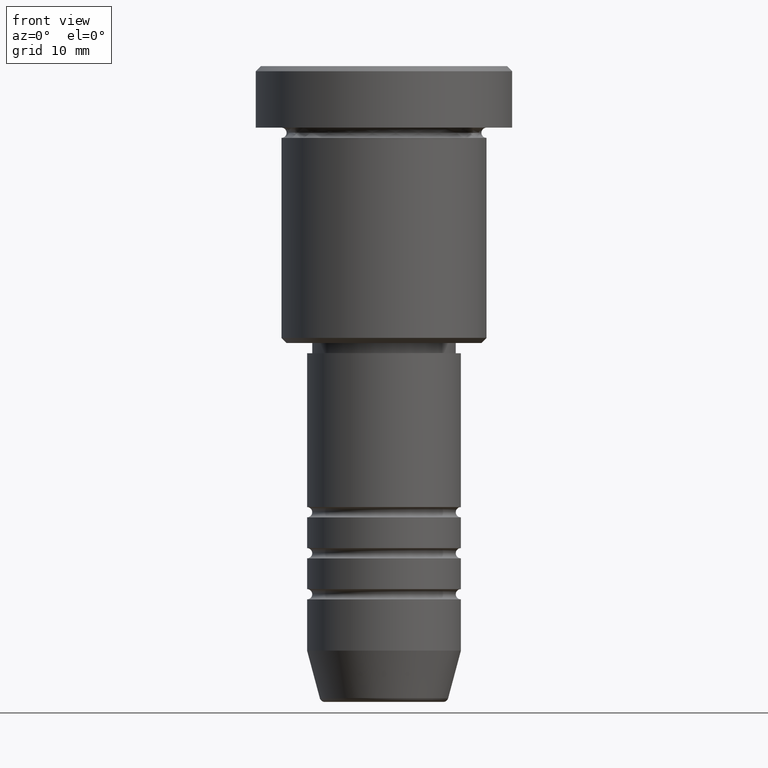
[diagram: clean part render]
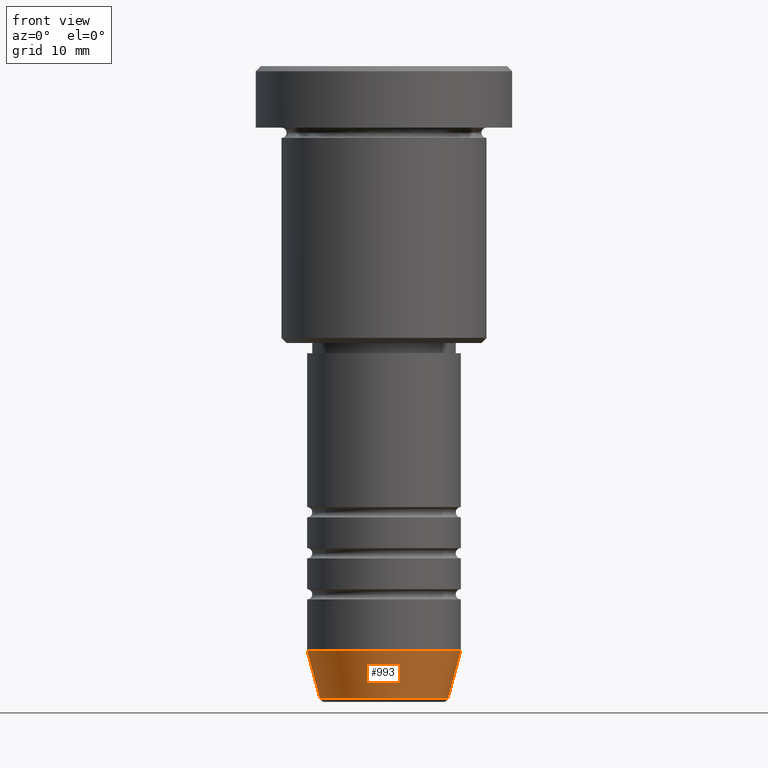
[diagram: same view with one face highlighted and labeled with its STEP entity id]
A machine part, front view. The second image highlights one B-rep face of the part: STEP entity #993.
In plain terms, the highlighted conical surface has half-angle 15 deg.
Its self-contained STEP definition (entity closure, byte-faithful):
#14 = CARTESIAN_POINT ( 'NONE',  ( 0.000000000000000000, 0.000000000000000000, -61.62940952255126348 ) ) ;
#62 = ORIENTED_EDGE ( 'NONE', *, *, #1100, .T. ) ;
#83 = CONICAL_SURFACE ( 'NONE', #202, 7.500000000000000000, 0.2617993877991500740 ) ;
#100 = CARTESIAN_POINT ( 'NONE',  ( -7.500000000000000000, 9.184850993605147944E-16, -57.00000000000000000 ) ) ;
#118 = ORIENTED_EDGE ( 'NONE', *, *, #192, .F. ) ;
#144 = CIRCLE ( 'NONE', #740, 7.500000000000000000 ) ;
#166 = ORIENTED_EDGE ( 'NONE', *, *, #934, .F. ) ;
#167 = DIRECTION ( 'NONE',  ( -0.2588190451025213501, 3.169619151431772337E-17, 0.9659258262890680902 ) ) ;
#176 = DIRECTION ( 'NONE',  ( -0.000000000000000000, -0.000000000000000000, 1.000000000000000000 ) ) ;
#192 = EDGE_CURVE ( 'NONE', #980, #1127, #144, .T. ) ;
#197 = DIRECTION ( 'NONE',  ( 1.000000000000000000, 0.000000000000000000, 0.000000000000000000 ) ) ;
#202 = AXIS2_PLACEMENT_3D ( 'NONE', #294, #176, #197 ) ;
#289 = FACE_OUTER_BOUND ( 'NONE', #990, .T. ) ;
#294 = CARTESIAN_POINT ( 'NONE',  ( 0.000000000000000000, 0.000000000000000000, -57.00000000000000000 ) ) ;
#311 = DIRECTION ( 'NONE',  ( -0.000000000000000000, -0.000000000000000000, 1.000000000000000000 ) ) ;
#395 = CARTESIAN_POINT ( 'NONE',  ( 0.000000000000000000, 0.000000000000000000, -57.00000000000000000 ) ) ;
#442 = VECTOR ( 'NONE', #1042, 1000.000000000000000 ) ;
#487 = CIRCLE ( 'NONE', #1147, 6.259553456999436882 ) ;
#500 = LINE ( 'NONE', #1139, #442 ) ;
#516 = EDGE_CURVE ( 'NONE', #712, #1127, #500, .T. ) ;
#528 = CARTESIAN_POINT ( 'NONE',  ( -7.500000000000000000, 9.184850993605147944E-16, -57.00000000000000000 ) ) ;
#630 = ORIENTED_EDGE ( 'NONE', *, *, #516, .T. ) ;
#647 = VERTEX_POINT ( 'NONE', #964 ) ;
#677 = CARTESIAN_POINT ( 'NONE',  ( 6.259553456999436882, 0.000000000000000000, -61.62940952255126348 ) ) ;
#683 = CARTESIAN_POINT ( 'NONE',  ( 7.500000000000000000, 0.000000000000000000, -57.00000000000000000 ) ) ;
#712 = VERTEX_POINT ( 'NONE', #677 ) ;
#740 = AXIS2_PLACEMENT_3D ( 'NONE', #395, #311, #752 ) ;
#752 = DIRECTION ( 'NONE',  ( 1.000000000000000000, 0.000000000000000000, 0.000000000000000000 ) ) ;
#934 = EDGE_CURVE ( 'NONE', #647, #980, #962, .T. ) ;
#962 = LINE ( 'NONE', #528, #985 ) ;
#964 = CARTESIAN_POINT ( 'NONE',  ( -6.259553456999436882, 8.425296549405627514E-16, -61.62940952255126348 ) ) ;
#980 = VERTEX_POINT ( 'NONE', #100 ) ;
#985 = VECTOR ( 'NONE', #167, 1000.000000000000000 ) ;
#990 = EDGE_LOOP ( 'NONE', ( #166, #62, #630, #118 ) ) ;
#993 = ADVANCED_FACE ( 'NONE', ( #289 ), #83, .T. ) ;
#1017 = DIRECTION ( 'NONE',  ( 1.000000000000000000, 0.000000000000000000, 0.000000000000000000 ) ) ;
#1042 = DIRECTION ( 'NONE',  ( 0.2588190451025213501, 0.000000000000000000, 0.9659258262890680902 ) ) ;
#1088 = DIRECTION ( 'NONE',  ( -0.000000000000000000, -0.000000000000000000, 1.000000000000000000 ) ) ;
#1100 = EDGE_CURVE ( 'NONE', #647, #712, #487, .T. ) ;
#1127 = VERTEX_POINT ( 'NONE', #683 ) ;
#1139 = CARTESIAN_POINT ( 'NONE',  ( 7.500000000000000000, 0.000000000000000000, -57.00000000000000000 ) ) ;
#1147 = AXIS2_PLACEMENT_3D ( 'NONE', #14, #1088, #1017 ) ;